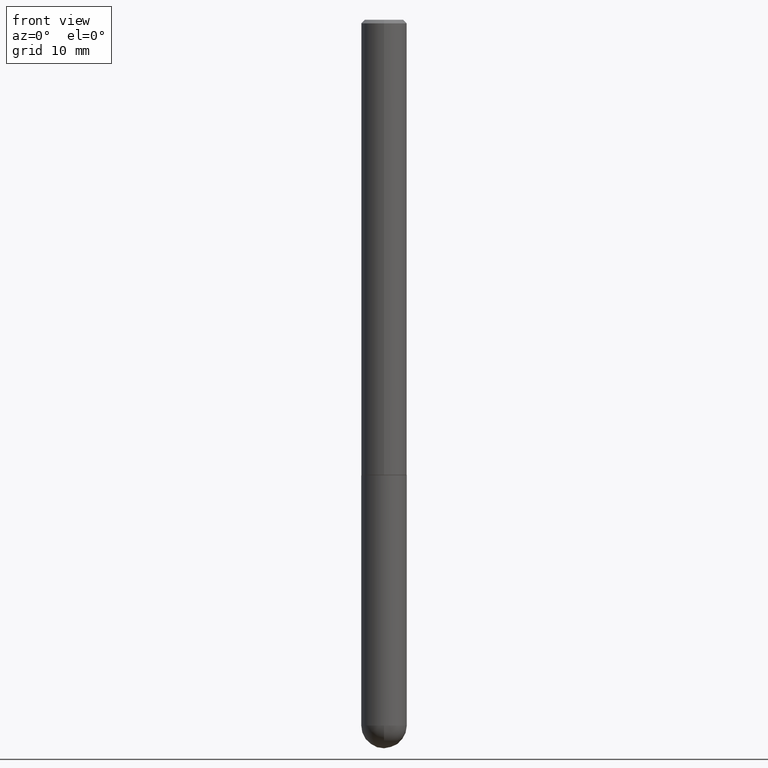
[diagram: clean part render]
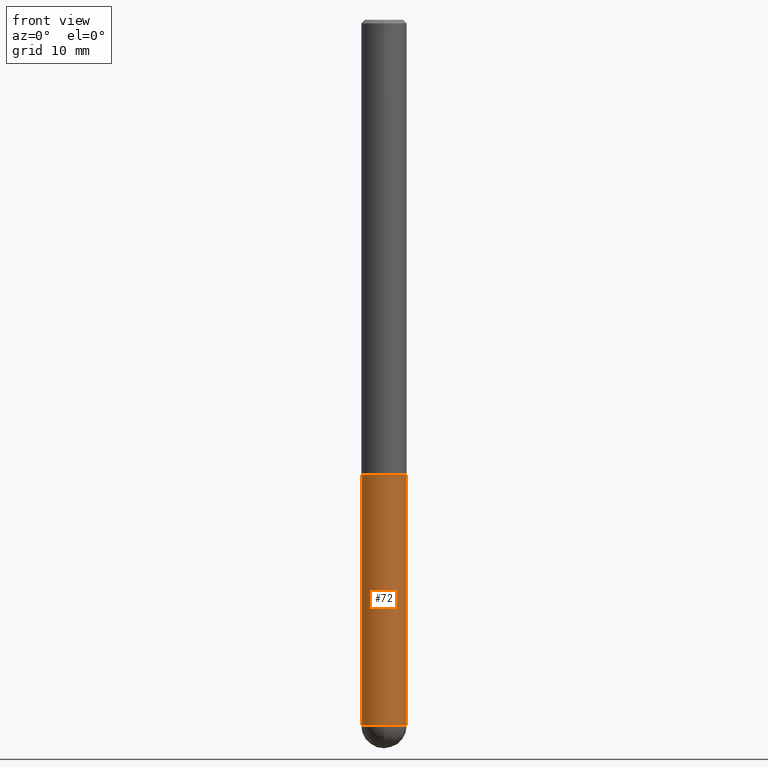
[diagram: same view with one face highlighted and labeled with its STEP entity id]
A machine part, front view. The second image highlights one B-rep face of the part: STEP entity #72.
In plain terms, the highlighted cylindrical surface (edge-blend (fillet) strip) has radius 3.175 mm, axis along (-0, 0, 1).
Its self-contained STEP definition (entity closure, byte-faithful):
#13 = CARTESIAN_POINT ( 'NONE',  ( -8.881784197000327384E-16, -0.1250000000000138500, -3.874999999999999556 ) ) ;
#15 = CYLINDRICAL_SURFACE ( 'NONE', #410, 0.1250000000000000000 ) ;
#20 = DIRECTION ( 'NONE',  ( -2.445468806185136877E-29, 3.491481338843145188E-15, 1.000000000000000000 ) ) ;
#21 = LINE ( 'NONE', #300, #344 ) ;
#26 = ORIENTED_EDGE ( 'NONE', *, *, #202, .T. ) ;
#34 = ORIENTED_EDGE ( 'NONE', *, *, #301, .T. ) ;
#48 = CARTESIAN_POINT ( 'NONE',  ( 6.113672015462842613E-29, -8.728703347107864943E-15, -2.500000000000000000 ) ) ;
#49 = AXIS2_PLACEMENT_3D ( 'NONE', #89, #91, #53 ) ;
#50 = EDGE_CURVE ( 'NONE', #188, #269, #396, .T. ) ;
#53 = DIRECTION ( 'NONE',  ( 1.000000000000000000, -6.982962677686261189E-15, 0.000000000000000000 ) ) ;
#64 = VECTOR ( 'NONE', #20, 39.37007874015748143 ) ;
#72 = ADVANCED_FACE ( 'NONE', ( #81 ), #15, .T. ) ;
#81 = FACE_OUTER_BOUND ( 'NONE', #310, .T. ) ;
#89 = CARTESIAN_POINT ( 'NONE',  ( 9.476191623967404313E-29, -1.352949018801718908E-14, -3.875000000000000000 ) ) ;
#91 = DIRECTION ( 'NONE',  ( -2.445468806185136597E-29, 3.491481338843145583E-15, 1.000000000000000000 ) ) ;
#115 = ORIENTED_EDGE ( 'NONE', *, *, #293, .F. ) ;
#123 = VERTEX_POINT ( 'NONE', #13 ) ;
#127 = AXIS2_PLACEMENT_3D ( 'NONE', #208, #237, #400 ) ;
#149 = VERTEX_POINT ( 'NONE', #392 ) ;
#158 = ORIENTED_EDGE ( 'NONE', *, *, #218, .T. ) ;
#169 = DIRECTION ( 'NONE',  ( 1.000000000000000000, -6.982962677686270655E-15, 0.000000000000000000 ) ) ;
#170 = CARTESIAN_POINT ( 'NONE',  ( 0.000000000000000000, 0.000000000000000000, 0.000000000000000000 ) ) ;
#188 = VERTEX_POINT ( 'NONE', #389 ) ;
#202 = EDGE_CURVE ( 'NONE', #149, #123, #262, .T. ) ;
#206 = CARTESIAN_POINT ( 'NONE',  ( -0.1250000000000000000, 8.881784197001252323E-16, -6.148668862818632227E-30 ) ) ;
#208 = CARTESIAN_POINT ( 'NONE',  ( 9.476191623967404313E-29, -1.352949018801718908E-14, -3.875000000000000000 ) ) ;
#212 = CARTESIAN_POINT ( 'NONE',  ( 0.1250000000000000278, -1.200196710227331272E-14, -3.875000000000000000 ) ) ;
#218 = EDGE_CURVE ( 'NONE', #345, #269, #21, .T. ) ;
#225 = CIRCLE ( 'NONE', #49, 0.1250000000000000278 ) ;
#227 = DIRECTION ( 'NONE',  ( -2.445468806185136597E-29, 3.491481338843145583E-15, 1.000000000000000000 ) ) ;
#228 = DIRECTION ( 'NONE',  ( -2.445468806185136597E-29, 3.491481338843145583E-15, 1.000000000000000000 ) ) ;
#237 = DIRECTION ( 'NONE',  ( -2.445468806185136597E-29, 3.491481338843145583E-15, 1.000000000000000000 ) ) ;
#262 = CIRCLE ( 'NONE', #127, 0.1250000000000000278 ) ;
#269 = VERTEX_POINT ( 'NONE', #398 ) ;
#293 = EDGE_CURVE ( 'NONE', #149, #188, #331, .T. ) ;
#300 = CARTESIAN_POINT ( 'NONE',  ( 0.1250000000000000000, -8.728703347107833388E-16, 6.095220969744919741E-30 ) ) ;
#301 = EDGE_CURVE ( 'NONE', #123, #345, #225, .T. ) ;
#310 = EDGE_LOOP ( 'NONE', ( #115, #26, #34, #158, #371 ) ) ;
#316 = DIRECTION ( 'NONE',  ( 1.000000000000000000, -6.982962677686266711E-15, 4.876176775795935793E-29 ) ) ;
#331 = LINE ( 'NONE', #206, #64 ) ;
#344 = VECTOR ( 'NONE', #360, 39.37007874015748143 ) ;
#345 = VERTEX_POINT ( 'NONE', #212 ) ;
#360 = DIRECTION ( 'NONE',  ( -2.445468806185136877E-29, 3.491481338843145188E-15, 1.000000000000000000 ) ) ;
#371 = ORIENTED_EDGE ( 'NONE', *, *, #50, .F. ) ;
#372 = AXIS2_PLACEMENT_3D ( 'NONE', #48, #228, #169 ) ;
#389 = CARTESIAN_POINT ( 'NONE',  ( -0.1250000000000000000, -1.024091834786240099E-14, -2.500000000000000000 ) ) ;
#392 = CARTESIAN_POINT ( 'NONE',  ( -0.1250000000000000278, -1.024091834786240415E-14, -3.875000000000000000 ) ) ;
#396 = CIRCLE ( 'NONE', #372, 0.1250000000000000000 ) ;
#398 = CARTESIAN_POINT ( 'NONE',  ( 0.1250000000000000000, -9.601573681818648281E-15, -2.500000000000000000 ) ) ;
#400 = DIRECTION ( 'NONE',  ( 1.000000000000000000, -6.982962677686261189E-15, 0.000000000000000000 ) ) ;
#410 = AXIS2_PLACEMENT_3D ( 'NONE', #170, #227, #316 ) ;